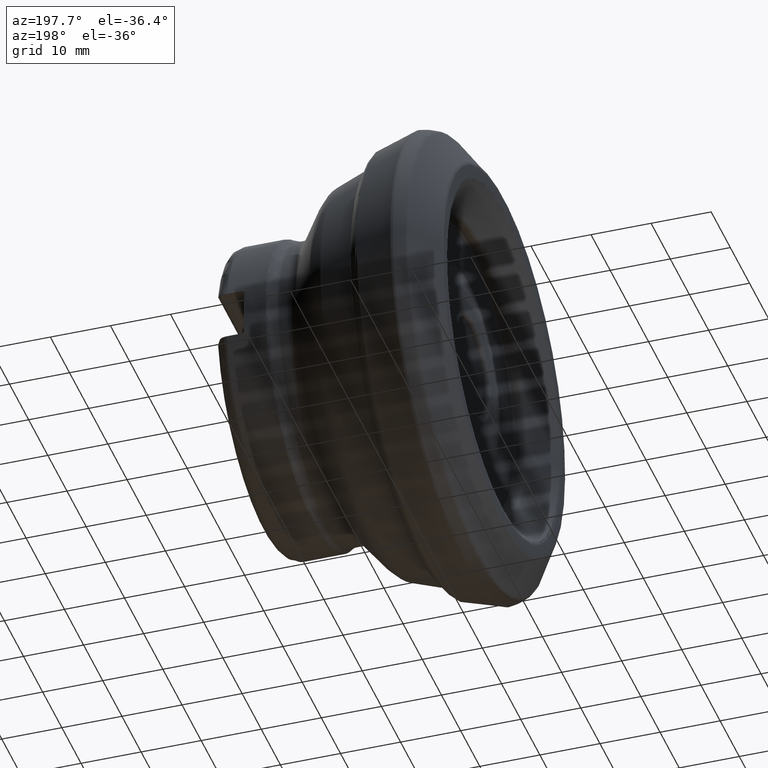
[diagram: clean part render]
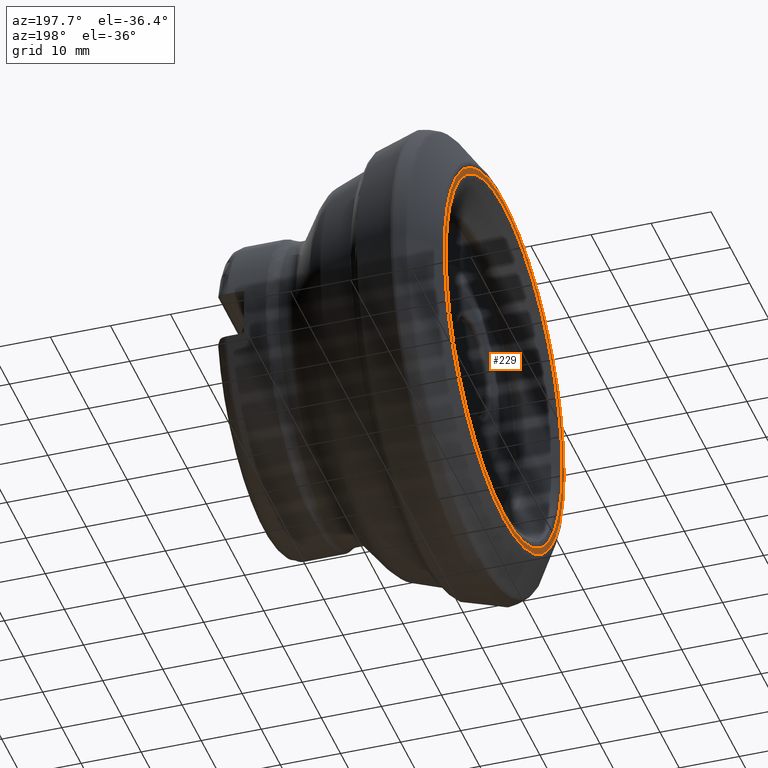
[diagram: same view with one face highlighted and labeled with its STEP entity id]
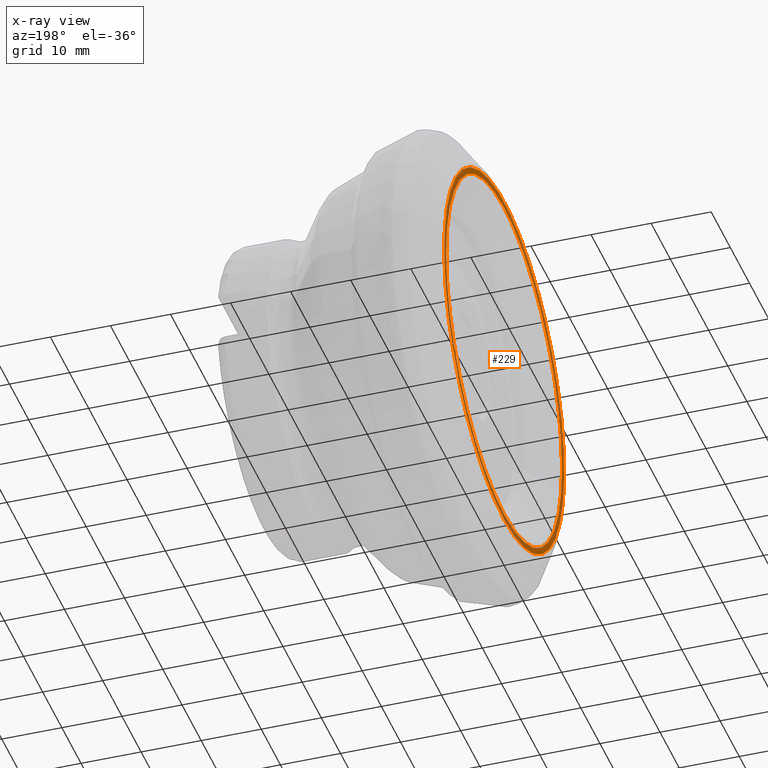
[diagram: x-ray of the same camera — body ghosted, the highlighted face saturated]
A machine part, auxiliary view. The second image highlights one B-rep face of the part: STEP entity #229.
The next image is the same camera in x-ray: the body ghosted, the highlighted face saturated — about 0% of this face is hidden behind the body in this view.
In plain terms, the highlighted face is a SurfaceOfRevolution surface.
Its self-contained STEP definition (entity closure, byte-faithful):
#229=ADVANCED_FACE('',(#399,#400),#298,.F.);
#298=SURFACE_OF_REVOLUTION('',#342,#320);
#320=AXIS1_PLACEMENT('',#1503,#1206);
#342=B_SPLINE_CURVE_WITH_KNOTS('',3,(#1498,#1499,#1500,#1501,#1502),
 .UNSPECIFIED.,.F.,.F.,(4,1,4),(0.,0.500000000073856,1.),.UNSPECIFIED.);
#399=FACE_BOUND('',#489,.T.);
#400=FACE_BOUND('',#490,.T.);
#489=EDGE_LOOP('',(#603));
#490=EDGE_LOOP('',(#604));
#603=ORIENTED_EDGE('',*,*,#908,.T.);
#604=ORIENTED_EDGE('',*,*,#909,.F.);
#819=VERTEX_POINT('',#1490);
#820=VERTEX_POINT('',#1497);
#908=EDGE_CURVE('',#819,#819,#1019,.T.);
#909=EDGE_CURVE('',#820,#820,#1020,.T.);
#1019=CIRCLE('',#1079,30.2238027041031);
#1020=CIRCLE('',#1080,31.2564532750273);
#1079=AXIS2_PLACEMENT_3D('',#1489,#1201,#1202);
#1080=AXIS2_PLACEMENT_3D('',#1496,#1204,#1205);
#1201=DIRECTION('',(1.,0.,0.));
#1202=DIRECTION('',(0.,0.,-1.));
#1204=DIRECTION('',(1.,0.,0.));
#1205=DIRECTION('',(0.,0.,-1.));
#1206=DIRECTION('',(1.,0.,0.));
#1489=CARTESIAN_POINT('',(-0.000338751119562123,0.,0.));
#1490=CARTESIAN_POINT('',(-0.000338751119562123,0.,-30.2238027041031));
#1496=CARTESIAN_POINT('',(-0.0104979109587514,0.,0.));
#1497=CARTESIAN_POINT('',(-0.0104979109587514,0.,-31.2564532750273));
#1498=CARTESIAN_POINT('',(-0.0104979109587514,-30.8465995771309,5.04511306732676));
#1499=CARTESIAN_POINT('',(-0.0129964346844645,-30.6722554956223,5.05601362698756));
#1500=CARTESIAN_POINT('',(-0.014968889628327,-30.322990165559,5.06713349293552));
#1501=CARTESIAN_POINT('',(-0.00621983300064561,-29.9737998318112,5.05696601624278));
#1502=CARTESIAN_POINT('',(-0.000338751119562123,-29.7995079725323,5.04654084413598));
#1503=CARTESIAN_POINT('',(0.,0.,0.));